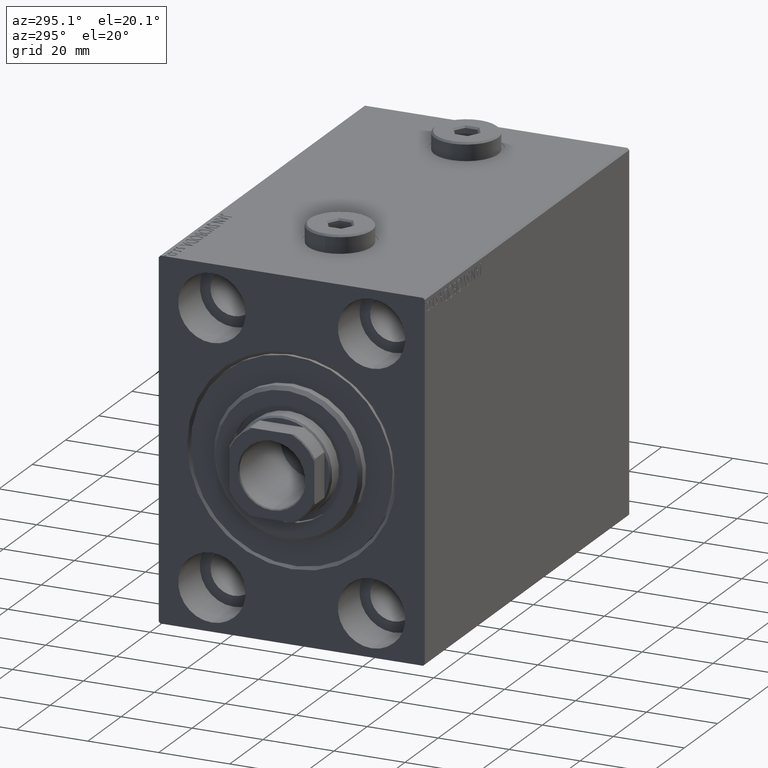
[diagram: clean part render]
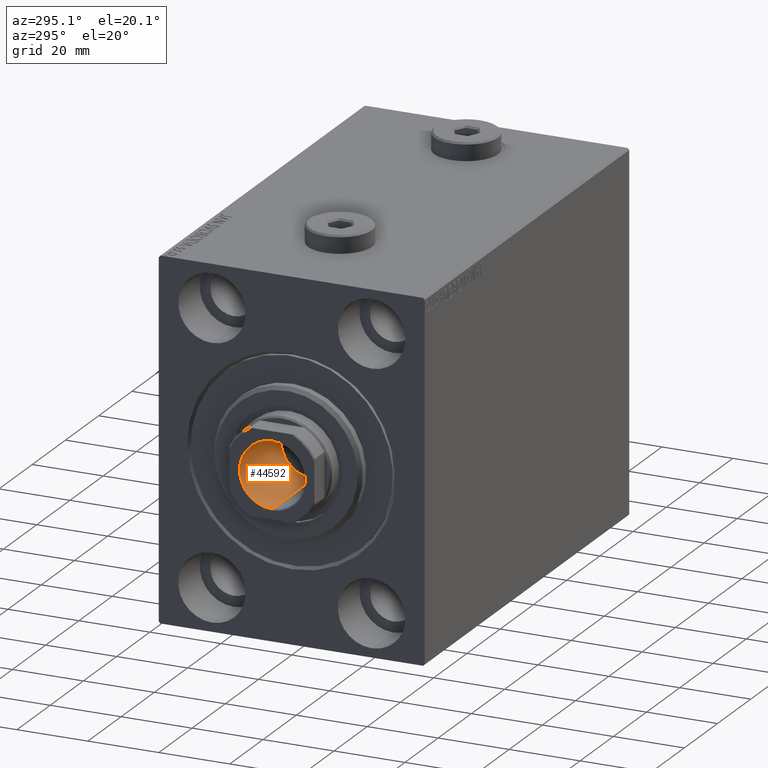
[diagram: same view with one face highlighted and labeled with its STEP entity id]
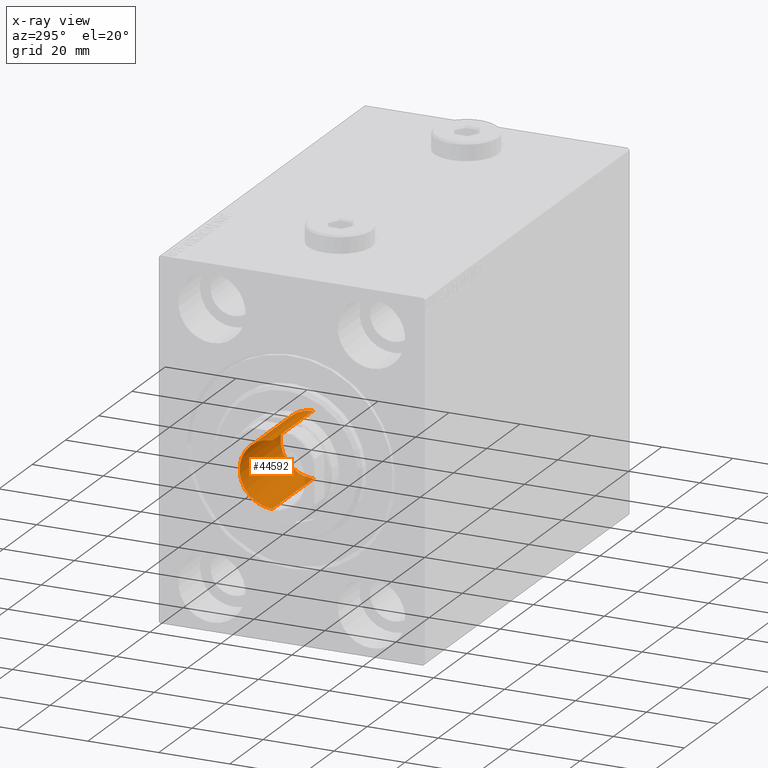
[diagram: x-ray of the same camera — body ghosted, the highlighted face saturated]
A machine part, auxiliary view. The second image highlights one B-rep face of the part: STEP entity #44592.
The next image is the same camera in x-ray: the body ghosted, the highlighted face saturated — about 2% of this face is hidden behind the body in this view.
In plain terms, the highlighted cylindrical surface (edge-blend (fillet) strip) has radius 9.25 mm, axis along (-1, 0, 0).
Its self-contained STEP definition (entity closure, byte-faithful):
#1839 = CIRCLE ( 'NONE', #21492, 9.249999999999994671 ) ;
#4479 = ORIENTED_EDGE ( 'NONE', *, *, #25516, .F. ) ;
#5862 = DIRECTION ( 'NONE',  ( 1.000000000000000000, 0.000000000000000000, 0.000000000000000000 ) ) ;
#6463 = VERTEX_POINT ( 'NONE', #24809 ) ;
#7633 = DIRECTION ( 'NONE',  ( 0.000000000000000000, 0.000000000000000000, 1.000000000000000000 ) ) ;
#7870 = CARTESIAN_POINT ( 'NONE',  ( 0.000000000000000000, 0.000000000000000000, 120.7000000000000313 ) ) ;
#9229 = VECTOR ( 'NONE', #31182, 1000.000000000000000 ) ;
#10876 = ORIENTED_EDGE ( 'NONE', *, *, #31532, .T. ) ;
#10915 = AXIS2_PLACEMENT_3D ( 'NONE', #34036, #27382, #5862 ) ;
#11006 = CARTESIAN_POINT ( 'NONE',  ( 9.249999999999994671, 0.000000000000000000, 121.0000000000000142 ) ) ;
#11306 = DIRECTION ( 'NONE',  ( 1.000000000000000000, 0.000000000000000000, 0.000000000000000000 ) ) ;
#11465 = DIRECTION ( 'NONE',  ( -0.000000000000000000, -0.000000000000000000, 1.000000000000000000 ) ) ;
#14055 = CARTESIAN_POINT ( 'NONE',  ( -9.249999999999994671, 1.132798289211300909E-15, 120.7000000000000313 ) ) ;
#14439 = LINE ( 'NONE', #11006, #9229 ) ;
#17902 = CARTESIAN_POINT ( 'NONE',  ( 9.249999999999994671, 0.000000000000000000, 96.00000000000000000 ) ) ;
#18800 = VERTEX_POINT ( 'NONE', #20580 ) ;
#20580 = CARTESIAN_POINT ( 'NONE',  ( 9.249999999999994671, 0.000000000000000000, 120.7000000000000313 ) ) ;
#21492 = AXIS2_PLACEMENT_3D ( 'NONE', #7870, #7633, #11306 ) ;
#22415 = ORIENTED_EDGE ( 'NONE', *, *, #25181, .T. ) ;
#23869 = DIRECTION ( 'NONE',  ( -0.000000000000000000, -0.000000000000000000, 1.000000000000000000 ) ) ;
#24809 = CARTESIAN_POINT ( 'NONE',  ( -9.249999999999994671, 1.132798289211300909E-15, 96.00000000000000000 ) ) ;
#25181 = EDGE_CURVE ( 'NONE', #18800, #29262, #1839, .T. ) ;
#25516 = EDGE_CURVE ( 'NONE', #6463, #29262, #31421, .T. ) ;
#25611 = EDGE_CURVE ( 'NONE', #34034, #6463, #32481, .T. ) ;
#27382 = DIRECTION ( 'NONE',  ( -0.000000000000000000, -0.000000000000000000, 1.000000000000000000 ) ) ;
#29262 = VERTEX_POINT ( 'NONE', #14055 ) ;
#29923 = CYLINDRICAL_SURFACE ( 'NONE', #10915, 9.249999999999994671 ) ;
#31182 = DIRECTION ( 'NONE',  ( -0.000000000000000000, -0.000000000000000000, 1.000000000000000000 ) ) ;
#31413 = ORIENTED_EDGE ( 'NONE', *, *, #25611, .F. ) ;
#31421 = LINE ( 'NONE', #42176, #41365 ) ;
#31532 = EDGE_CURVE ( 'NONE', #34034, #18800, #14439, .T. ) ;
#32413 = EDGE_LOOP ( 'NONE', ( #4479, #31413, #10876, #22415 ) ) ;
#32481 = CIRCLE ( 'NONE', #40536, 9.249999999999994671 ) ;
#32542 = CARTESIAN_POINT ( 'NONE',  ( 0.000000000000000000, 0.000000000000000000, 96.00000000000000000 ) ) ;
#34034 = VERTEX_POINT ( 'NONE', #17902 ) ;
#34036 = CARTESIAN_POINT ( 'NONE',  ( 0.000000000000000000, 0.000000000000000000, 121.0000000000000142 ) ) ;
#40536 = AXIS2_PLACEMENT_3D ( 'NONE', #32542, #11465, #43320 ) ;
#40930 = FACE_OUTER_BOUND ( 'NONE', #32413, .T. ) ;
#41365 = VECTOR ( 'NONE', #23869, 1000.000000000000000 ) ;
#42176 = CARTESIAN_POINT ( 'NONE',  ( -9.249999999999994671, 1.132798289211300909E-15, 121.0000000000000142 ) ) ;
#43320 = DIRECTION ( 'NONE',  ( 1.000000000000000000, 0.000000000000000000, 0.000000000000000000 ) ) ;
#44592 = ADVANCED_FACE ( 'NONE', ( #40930 ), #29923, .F. ) ;